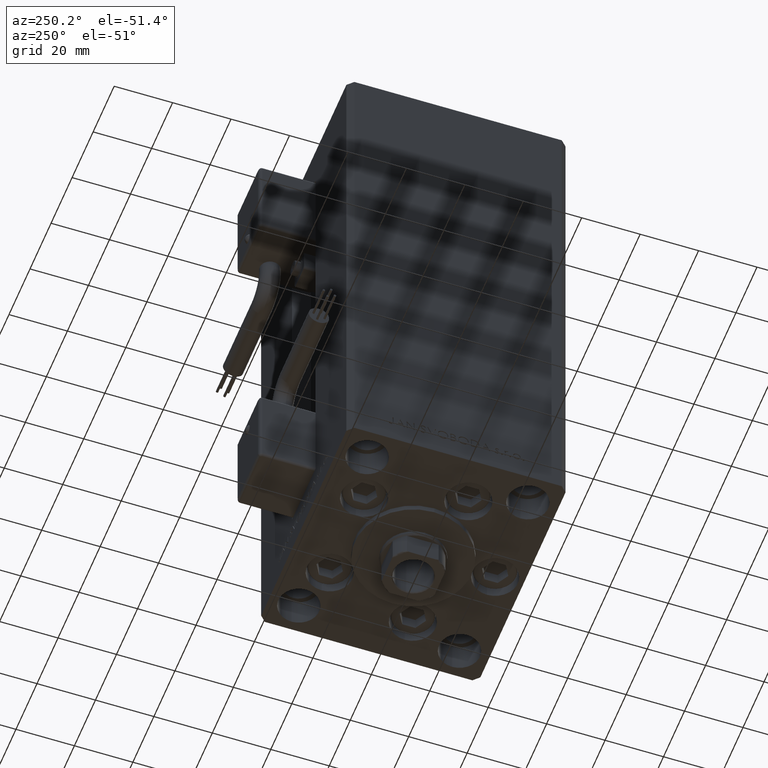
[diagram: clean part render]
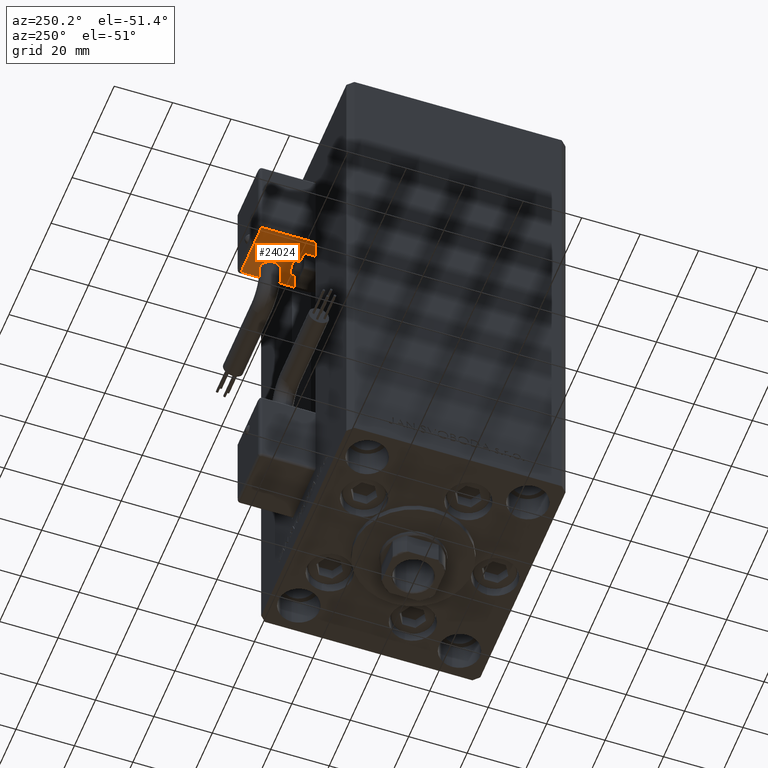
[diagram: same view with one face highlighted and labeled with its STEP entity id]
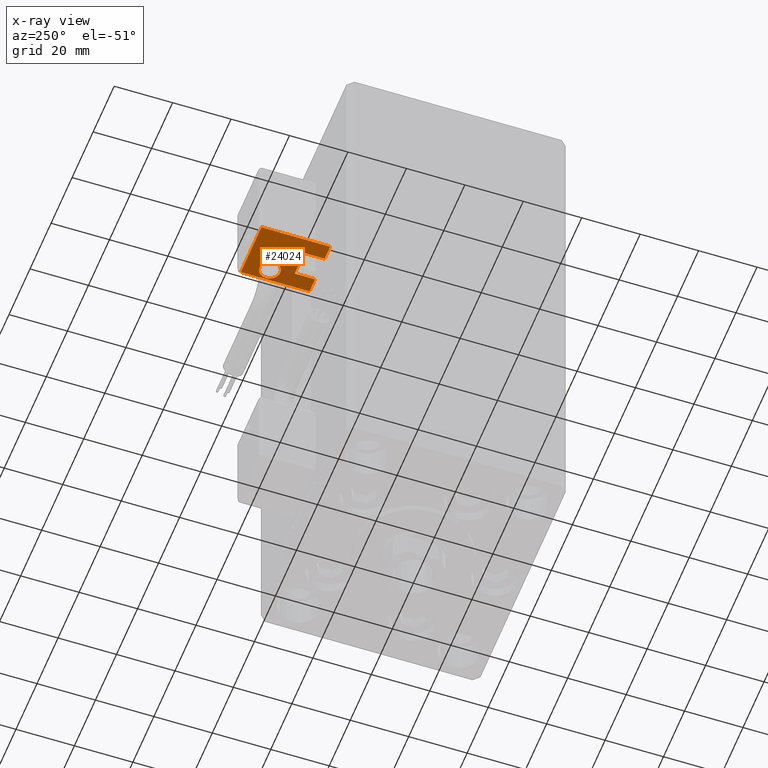
[diagram: x-ray of the same camera — body ghosted, the highlighted face saturated]
A machine part, auxiliary view. The second image highlights one B-rep face of the part: STEP entity #24024.
The next image is the same camera in x-ray: the body ghosted, the highlighted face saturated — about 1% of this face is hidden behind the body in this view.
In plain terms, the highlighted planar face has unit normal (0, -0, 1).
Its self-contained STEP definition (entity closure, byte-faithful):
#321 = VERTEX_POINT ( 'NONE', #44932 ) ;
#574 = CARTESIAN_POINT ( 'NONE',  ( 10.80000000000000071, 27.00000000000000000, -55.00000000000000000 ) ) ;
#638 = DIRECTION ( 'NONE',  ( 2.664535259099999699E-32, -1.000000000000000000, -1.200000000000000024E-16 ) ) ;
#695 = VECTOR ( 'NONE', #5735, 1000.000000000000000 ) ;
#838 = LINE ( 'NONE', #574, #18573 ) ;
#1186 = AXIS2_PLACEMENT_3D ( 'NONE', #28228, #20045, #48837 ) ;
#2082 = LINE ( 'NONE', #6310, #30237 ) ;
#2277 = CARTESIAN_POINT ( 'NONE',  ( 5.799999999999999822, 38.50000000000000000, -55.00000000000000000 ) ) ;
#2494 = EDGE_CURVE ( 'NONE', #12511, #11551, #14418, .T. ) ;
#3108 = EDGE_CURVE ( 'NONE', #23519, #44856, #2082, .T. ) ;
#3729 = LINE ( 'NONE', #19844, #50137 ) ;
#3831 = ORIENTED_EDGE ( 'NONE', *, *, #2494, .T. ) ;
#4463 = VECTOR ( 'NONE', #638, 1000.000000000000000 ) ;
#5735 = DIRECTION ( 'NONE',  ( -1.000000000000000000, 0.000000000000000000, -2.220446049250000002E-16 ) ) ;
#6310 = CARTESIAN_POINT ( 'NONE',  ( 10.80000000000000071, 50.50000000000000000, -55.00000000000000000 ) ) ;
#6845 = CARTESIAN_POINT ( 'NONE',  ( 4.500000000000000000, 34.00000000000000000, -55.00000000000000000 ) ) ;
#9327 = CARTESIAN_POINT ( 'NONE',  ( -9.799999999999998934, 50.50000000000000000, -55.00000000000000000 ) ) ;
#9431 = CIRCLE ( 'NONE', #33907, 3.500000000000003109 ) ;
#10198 = CARTESIAN_POINT ( 'NONE',  ( -9.799999999999998934, 51.50000000000000000, -55.00000000000000000 ) ) ;
#11085 = ORIENTED_EDGE ( 'NONE', *, *, #40642, .T. ) ;
#11551 = VERTEX_POINT ( 'NONE', #48301 ) ;
#12206 = DIRECTION ( 'NONE',  ( -1.000000000000000000, 0.000000000000000000, -2.220446049250000002E-16 ) ) ;
#12511 = VERTEX_POINT ( 'NONE', #32134 ) ;
#12889 = CARTESIAN_POINT ( 'NONE',  ( 5.799999999999999822, 45.50000000000000711, -55.00000000000000000 ) ) ;
#12894 = VERTEX_POINT ( 'NONE', #25183 ) ;
#13076 = CARTESIAN_POINT ( 'NONE',  ( 4.500000000000000000, 34.00000000000000000, -55.00000000000000000 ) ) ;
#13207 = ORIENTED_EDGE ( 'NONE', *, *, #16178, .T. ) ;
#13893 = DIRECTION ( 'NONE',  ( -3.108624468950000014E-32, 1.000000000000000000, 1.400000000000000069E-16 ) ) ;
#14418 = LINE ( 'NONE', #34246, #695 ) ;
#15101 = ORIENTED_EDGE ( 'NONE', *, *, #3108, .T. ) ;
#15898 = CARTESIAN_POINT ( 'NONE',  ( 5.799999999999999822, 42.00000000000000000, -55.00000000000000000 ) ) ;
#16178 = EDGE_CURVE ( 'NONE', #321, #12894, #36832, .T. ) ;
#16599 = FACE_BOUND ( 'NONE', #32255, .T. ) ;
#17169 = LINE ( 'NONE', #33286, #17546 ) ;
#17546 = VECTOR ( 'NONE', #49398, 1000.000000000000000 ) ;
#18573 = VECTOR ( 'NONE', #12206, 1000.000000000000000 ) ;
#18909 = CARTESIAN_POINT ( 'NONE',  ( 9.799999999999998934, 50.50000000000000000, -55.00000000000000000 ) ) ;
#19127 = EDGE_CURVE ( 'NONE', #38863, #23519, #34241, .T. ) ;
#19609 = DIRECTION ( 'NONE',  ( 2.220446049250000002E-16, 1.400000000000000069E-16, -1.000000000000000000 ) ) ;
#19844 = CARTESIAN_POINT ( 'NONE',  ( 9.799999999999998934, 26.00000000000000000, -55.00000000000000000 ) ) ;
#20045 = DIRECTION ( 'NONE',  ( 3.108624468950000014E-32, -1.400000000000000069E-16, 1.000000000000000000 ) ) ;
#23519 = VERTEX_POINT ( 'NONE', #9327 ) ;
#23769 = EDGE_CURVE ( 'NONE', #44856, #12511, #3729, .T. ) ;
#24024 = ADVANCED_FACE ( 'NONE', ( #27966, #16599 ), #45122, .F. ) ;
#24628 = VERTEX_POINT ( 'NONE', #2277 ) ;
#25183 = CARTESIAN_POINT ( 'NONE',  ( -4.500000000000000000, 27.00000000000000000, -55.00000000000000000 ) ) ;
#25971 = VECTOR ( 'NONE', #38810, 1000.000000000000000 ) ;
#27440 = LINE ( 'NONE', #6845, #25971 ) ;
#27477 = EDGE_LOOP ( 'NONE', ( #13207, #11085, #51990, #15101, #40984, #3831, #31265, #41922 ) ) ;
#27966 = FACE_OUTER_BOUND ( 'NONE', #27477, .T. ) ;
#28170 = VECTOR ( 'NONE', #13893, 1000.000000000000000 ) ;
#28228 = CARTESIAN_POINT ( 'NONE',  ( 10.80000000000000071, 51.50000000000000000, -55.00000000000000000 ) ) ;
#29541 = CARTESIAN_POINT ( 'NONE',  ( 5.799999999999999822, 42.00000000000000000, -55.00000000000000000 ) ) ;
#30237 = VECTOR ( 'NONE', #41985, 1000.000000000000000 ) ;
#30773 = DIRECTION ( 'NONE',  ( 0.000000000000000000, -1.000000000000000000, 0.000000000000000000 ) ) ;
#31265 = ORIENTED_EDGE ( 'NONE', *, *, #35411, .F. ) ;
#31883 = AXIS2_PLACEMENT_3D ( 'NONE', #15898, #19609, #43896 ) ;
#32134 = CARTESIAN_POINT ( 'NONE',  ( 9.799999999999998934, 27.00000000000000000, -55.00000000000000000 ) ) ;
#32255 = EDGE_LOOP ( 'NONE', ( #36764, #33890 ) ) ;
#32499 = EDGE_CURVE ( 'NONE', #37931, #24628, #35223, .T. ) ;
#33286 = CARTESIAN_POINT ( 'NONE',  ( 4.500000000000000000, 34.00000000000000000, -55.00000000000000000 ) ) ;
#33890 = ORIENTED_EDGE ( 'NONE', *, *, #32499, .F. ) ;
#33907 = AXIS2_PLACEMENT_3D ( 'NONE', #29541, #46626, #30773 ) ;
#34241 = LINE ( 'NONE', #10198, #28170 ) ;
#34246 = CARTESIAN_POINT ( 'NONE',  ( 10.80000000000000071, 27.00000000000000000, -55.00000000000000000 ) ) ;
#35223 = CIRCLE ( 'NONE', #31883, 3.500000000000003109 ) ;
#35411 = EDGE_CURVE ( 'NONE', #45036, #11551, #17169, .T. ) ;
#36764 = ORIENTED_EDGE ( 'NONE', *, *, #46933, .F. ) ;
#36832 = LINE ( 'NONE', #44224, #4463 ) ;
#37931 = VERTEX_POINT ( 'NONE', #12889 ) ;
#38810 = DIRECTION ( 'NONE',  ( -1.000000000000000000, 0.000000000000000000, -2.220446049250000002E-16 ) ) ;
#38863 = VERTEX_POINT ( 'NONE', #45395 ) ;
#40642 = EDGE_CURVE ( 'NONE', #12894, #38863, #838, .T. ) ;
#40984 = ORIENTED_EDGE ( 'NONE', *, *, #23769, .T. ) ;
#41922 = ORIENTED_EDGE ( 'NONE', *, *, #51105, .T. ) ;
#41985 = DIRECTION ( 'NONE',  ( 1.000000000000000000, 0.000000000000000000, 2.220446049250000002E-16 ) ) ;
#43896 = DIRECTION ( 'NONE',  ( 0.000000000000000000, -1.000000000000000000, 0.000000000000000000 ) ) ;
#44224 = CARTESIAN_POINT ( 'NONE',  ( -4.500000000000000000, 34.00000000000000000, -55.00000000000000000 ) ) ;
#44856 = VERTEX_POINT ( 'NONE', #18909 ) ;
#44932 = CARTESIAN_POINT ( 'NONE',  ( -4.500000000000000000, 34.00000000000000000, -55.00000000000000000 ) ) ;
#45036 = VERTEX_POINT ( 'NONE', #13076 ) ;
#45122 = PLANE ( 'NONE',  #1186 ) ;
#45395 = CARTESIAN_POINT ( 'NONE',  ( -9.799999999999998934, 27.00000000000000000, -55.00000000000000000 ) ) ;
#46626 = DIRECTION ( 'NONE',  ( 2.220446049250000002E-16, 1.400000000000000069E-16, -1.000000000000000000 ) ) ;
#46933 = EDGE_CURVE ( 'NONE', #24628, #37931, #9431, .T. ) ;
#47055 = DIRECTION ( 'NONE',  ( 3.108624468950000014E-32, -1.000000000000000000, -1.400000000000000069E-16 ) ) ;
#48301 = CARTESIAN_POINT ( 'NONE',  ( 4.500000000000000000, 27.00000000000000000, -55.00000000000000000 ) ) ;
#48837 = DIRECTION ( 'NONE',  ( 1.000000000000000000, 2.220446049250000002E-16, 0.000000000000000000 ) ) ;
#49398 = DIRECTION ( 'NONE',  ( 2.664535259099999699E-32, -1.000000000000000000, -1.200000000000000024E-16 ) ) ;
#50137 = VECTOR ( 'NONE', #47055, 1000.000000000000000 ) ;
#51105 = EDGE_CURVE ( 'NONE', #45036, #321, #27440, .T. ) ;
#51990 = ORIENTED_EDGE ( 'NONE', *, *, #19127, .T. ) ;